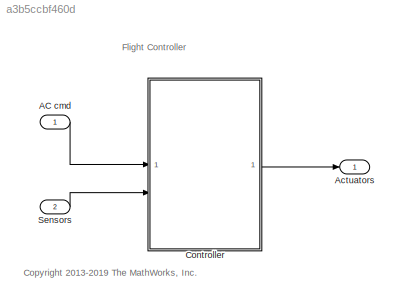
MODEL slx_a3b5ccbf460d
KIND model
CONFIG AbsTol = auto
CONFIG EnableMultiTasking = on
CONFIG FixedStep = Ts
CONFIG MaxStep = auto
CONFIG MinStep = auto
CONFIG RelTol = 1e-3
CONFIG SampleTimeConstraint = Unconstrained
CONFIG SolverName = ode3
CONFIG StartTime = 0
CONFIG StopTime = 10.0
BLOCK [Inport] AC cmd
  OutDataTypeStr = Bus: CommandBus
BLOCK [Outport] Actuators
  VectorParamsAs1DForOutWhenUnconnected = off
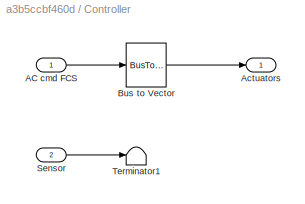
BLOCK [SubSystem] Controller
BLOCK [Inport] Controller/AC cmd FCS
BLOCK [Outport] Controller/Actuators
  VectorParamsAs1DForOutWhenUnconnected = off
BLOCK [BusToVector] Controller/Bus to Vector
BLOCK [Inport] Controller/Sensor
  Port = 2
BLOCK [Terminator] Controller/Terminator1
BLOCK [Inport] Sensors
  BusOutputAsStruct = on
  OutDataTypeStr = Bus: SensorsBus
  Port = 2
ANNOTATION (root): <copyright redacted>
ANNOTATION (root): Flight Controller
LINE AC cmd:1 -> Controller:1
LINE Controller/AC cmd FCS:1 -> Controller/Bus to Vector:1
LINE Controller/Bus to Vector:1 -> Controller/Actuators:1
LINE Controller/Sensor:1 -> Controller/Terminator1:1
LINE Controller:1 -> Actuators:1
LINE Sensors:1 -> Controller:2
